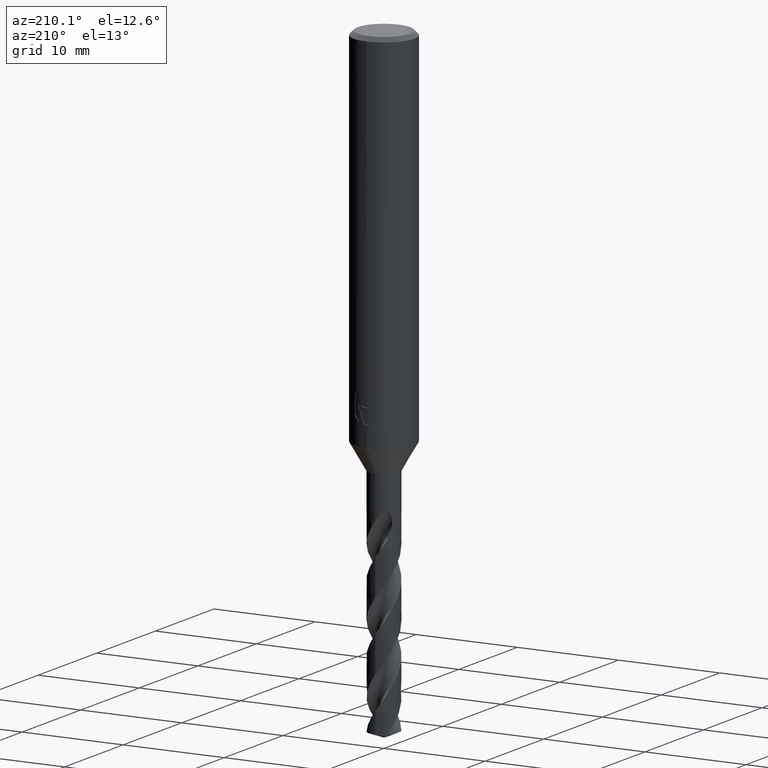
[diagram: clean part render]
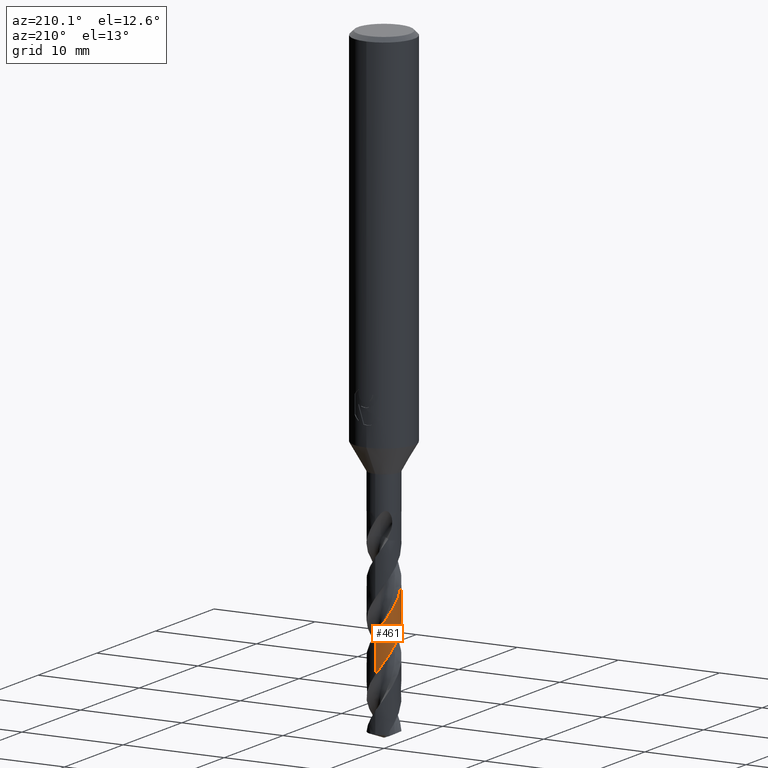
[diagram: same view with one face highlighted and labeled with its STEP entity id]
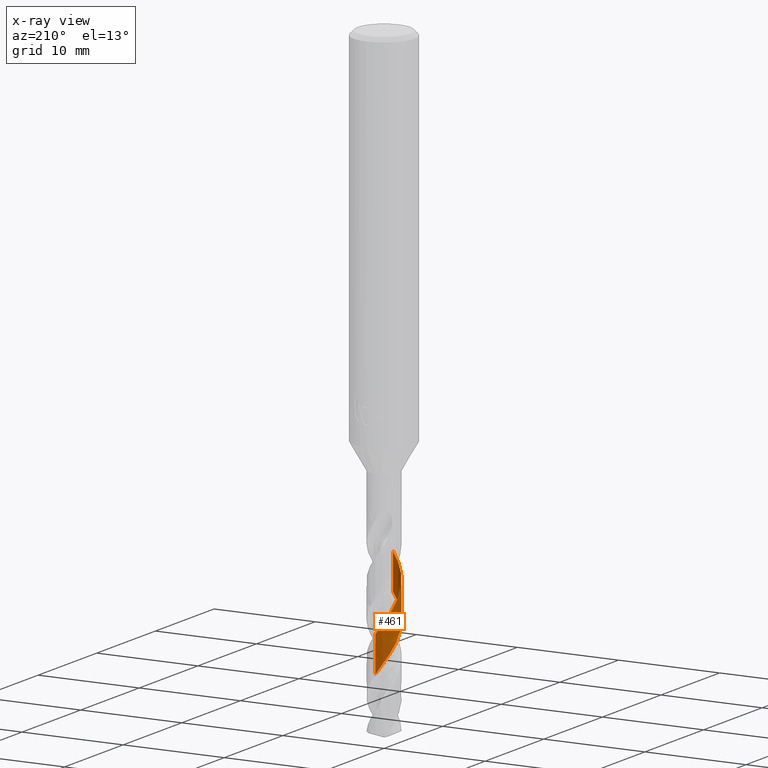
[diagram: x-ray of the same camera — body ghosted, the highlighted face saturated]
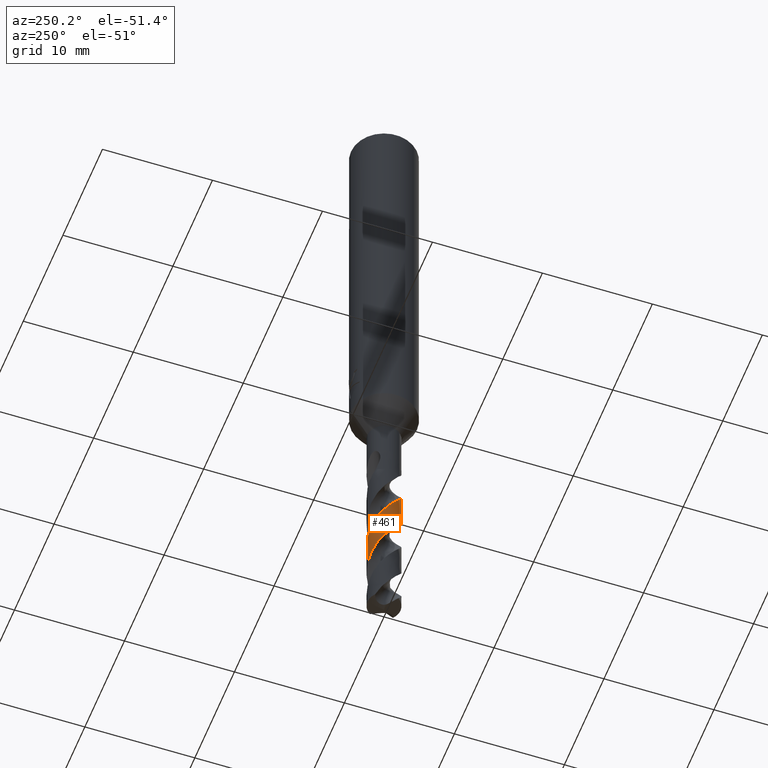
[diagram: same view with one face highlighted and labeled with its STEP entity id]
A machine part, auxiliary view. The second image highlights one B-rep face of the part: STEP entity #461.
The next image is the same camera in x-ray: the body ghosted, the highlighted face saturated — about 0% of this face is hidden behind the body in this view.
A second angle (auxiliary view) of the same face is appended — the face is thin or edge-on in the first view.
In plain terms, the highlighted conical surface has half-angle 0 deg.
Its self-contained STEP definition (entity closure, byte-faithful):
#307=VERTEX_POINT('',#816);
#405=VERTEX_POINT('',#921);
#453=EDGE_CURVE('',#307,#519,#974,.T.);
#461=ADVANCED_FACE('',(#984),#985,.T.);
#519=VERTEX_POINT('',#1049);
#595=EDGE_CURVE('',#699,#405,#1132,.T.);
#699=VERTEX_POINT('',#1246);
#723=EDGE_CURVE('',#405,#307,#1273,.T.);
#731=EDGE_CURVE('',#519,#699,#1282,.T.);
#816=CARTESIAN_POINT('',(3.57300037960697E-014,-1.49993839851076,-49.4700634271173));
#921=CARTESIAN_POINT('',(8.52531076527414E-012,1.49997300106852,-56.2016604643893));
#974=LINE('',#3062,#3063);
#984=FACE_OUTER_BOUND('',#3073,.T.);
#985=CONICAL_SURFACE('',#3074,1.49995,5.14031923979886E-006);
#1049=CARTESIAN_POINT('',(1.36365644897813E-014,-1.49992016819919,-45.9235304760453));
#1132=LINE('',#3940,#3941);
#1246=CARTESIAN_POINT('',(-4.24906613752697E-016,1.49995477359338,-52.6556793123933));
#1273=B_SPLINE_CURVE_WITH_KNOTS('',3,(#4724,#4725,#4726,#4727,#4728,#4729,#4730,#4731,#4732,#4733,#4734,#4735,#4736,#4737,#4738,#4739,#4740,#4741,#4742,#4743,#4744,#4745,#4746,#4747,#4748,#4749,#4750,#4751,#4752,#4753,#4754,#4755,#4756,#4757,#4758,#4759,#4760,#4761,#4762,#4763,#4764,#4765,#4766,#4767,#4768,#4769,#4770,#4771,#4772,#4773,#4774,#4775,#4776,#4777,#4778,#4779,#4780,#4781,#4782,#4783,#4784,#4785,#4786,#4787,#4788,#4789,#4790,#4791,#4792,#4793,#4794,#4795,#4796,#4797,#4798,#4799,#4800,#4801,#4802,#4803,#4804,#4805),.UNSPECIFIED.,.F.,.F.,(4,2,2,2,2,2,2,2,2,2,2,2,2,2,2,2,2,2,2,2,2,2,2,2,2,2,2,2,2,2,2,2,2,2,2,2,2,2,2,2,4),(0.0,1.20410374957684,1.64390835440443,2.51108941524808,3.2178345579094,3.50521719873214,4.60674178259784,4.90657849424179,6.08062694376448,6.22352512300384,7.28972884179551,7.81269005957791,8.36029403080159,9.23943846758327,9.73087689209917,10.6096483401734,11.1551090775956,12.0292702690483,12.5615361503463,13.4314288877264,13.8740677899995,14.7487859791983,15.277086154792,16.148488729927,16.6973625843419,17.2800427700184,17.9246501023505,18.6835513333995,18.9654417606361,19.1740437003243,20.0711352347055,20.1043609643397,20.2182143856412,20.3381639072584,20.4871934528864,20.6772693627819,20.8304226633557,20.9497845038939,21.0494683050454,21.2672576027525,21.4730540881757),.UNSPECIFIED.);
#1282=B_SPLINE_CURVE_WITH_KNOTS('',3,(#4896,#4897,#4898,#4899,#4900,#4901,#4902,#4903,#4904,#4905,#4906,#4907,#4908,#4909,#4910,#4911,#4912,#4913,#4914,#4915,#4916,#4917,#4918,#4919,#4920,#4921,#4922,#4923,#4924,#4925,#4926,#4927,#4928,#4929,#4930,#4931,#4932,#4933,#4934,#4935,#4936,#4937,#4938,#4939,#4940,#4941,#4942,#4943,#4944,#4945,#4946,#4947,#4948,#4949,#4950,#4951,#4952,#4953,#4954,#4955,#4956,#4957,#4958,#4959,#4960,#4961,#4962,#4963,#4964,#4965,#4966,#4967,#4968,#4969,#4970,#4971,#4972,#4973,#4974,#4975,#4976,#4977,#4978,#4979,#4980,#4981,#4982,#4983,#4984,#4985,#4986,#4987,#4988,#4989,#4990,#4991,#4992,#4993,#4994,#4995),.UNSPECIFIED.,.F.,.F.,(4,2,2,2,2,2,2,2,2,2,2,2,2,2,2,2,2,2,2,2,2,2,2,2,2,2,2,2,2,2,2,2,2,2,2,2,2,2,2,2,2,2,2,2,2,2,2,2,2,4),(0.0,0.0494770349024312,0.0874460724039117,0.101018923007453,0.118882330418932,0.263554123507688,0.312997574476619,0.354081651349707,0.423768533427,0.508155185945295,0.672210713903487,0.699854159062458,0.818234451711137,0.894586122439807,0.967333661050095,1.00500013145378,1.11817492508677,1.34546461604303,1.45576750765601,1.79219487180401,2.69820480304552,2.83786086304867,3.60133049767861,4.49823561342111,5.12886428074419,5.78024308772815,6.76779369941567,6.9704344308379,7.66156994148285,8.56895041321238,9.61872501024354,9.71121369697719,10.3869950290038,10.8402021433472,11.2723035119934,12.123545721467,12.6301595036068,13.5289355353771,14.0091781563316,14.9125320830876,15.3859589385816,16.2893795474418,16.7628541366356,17.66703717944,18.1369888293891,19.0418781370671,19.5200614635924,20.370272897072,20.8543308610321,21.3435466858628),.UNSPECIFIED.);
#3062=CARTESIAN_POINT('',(1.83690831930153E-016,-1.49995,-51.7270223243004));
#3063=VECTOR('',#5465,1.0);
#3073=EDGE_LOOP('',(#5482,#5483,#5484,#5485));
#3074=AXIS2_PLACEMENT_3D('',#5486,#5487,#5488);
#3940=CARTESIAN_POINT('',(-1.83678828153022E-016,1.49995,-51.7270223243004));
#3941=VECTOR('',#5652,1.0);
#4724=CARTESIAN_POINT('',(0.955970928159858,-1.15590639089555,-61.4540446486007));
#4725=CARTESIAN_POINT('',(1.13434228225584,-1.00838548563016,-61.1261461170947));
#4726=CARTESIAN_POINT('',(1.27580064295621,-0.821947378378693,-60.7956379731833));
#4727=CARTESIAN_POINT('',(1.40419131635194,-0.534169576059815,-60.346863537792));
#4728=CARTESIAN_POINT('',(1.43199268586925,-0.454412018523667,-60.227518388901));
#4729=CARTESIAN_POINT('',(1.49426554298271,-0.211652609583752,-59.8708478895304));
#4730=CARTESIAN_POINT('',(1.50850026079724,-0.0450886758047098,-59.6319156978935));
#4731=CARTESIAN_POINT('',(1.48423833610688,0.255649622257659,-59.2023576668012));
#4732=CARTESIAN_POINT('',(1.45511877912252,0.388309578685045,-59.0121178487377));
#4733=CARTESIAN_POINT('',(1.3899787315027,0.566502754472807,-58.740299462178));
#4734=CARTESIAN_POINT('',(1.36841439629919,0.616744911969606,-58.661303672898));
#4735=CARTESIAN_POINT('',(1.25142969405804,0.852986950628531,-58.2821850585079));
#4736=CARTESIAN_POINT('',(1.12061205276445,1.01877537814973,-57.9917587684018));
#4737=CARTESIAN_POINT('',(0.916188613824998,1.1890244412814,-57.6103260756404));
#4738=CARTESIAN_POINT('',(0.870570094599348,1.22281326259888,-57.5282710661224));
#4739=CARTESIAN_POINT('',(0.637193879510072,1.37599598018234,-57.1272917714315));
#4740=CARTESIAN_POINT('',(0.426977291954523,1.45489249931395,-56.8200269229101));
#4741=CARTESIAN_POINT('',(0.180829367100363,1.48927869826162,-56.4620009561243));
#4742=CARTESIAN_POINT('',(0.154052720072316,1.49228816614962,-56.4230691165949));
#4743=CARTESIAN_POINT('',(-0.0743280491846724,1.51170218052718,-56.0932268729777));
#4744=CARTESIAN_POINT('',(-0.277142174069716,1.48799351676023,-55.8116263011499));
#4745=CARTESIAN_POINT('',(-0.563845639604201,1.39350381212063,-55.3797445121049));
#4746=CARTESIAN_POINT('',(-0.65478077180699,1.35316753393725,-55.2362636161388));
#4747=CARTESIAN_POINT('',(-0.831820977796934,1.25252713398174,-54.9451942611514));
#4748=CARTESIAN_POINT('',(-0.91691183415787,1.19167805836288,-54.7976696642488));
#4749=CARTESIAN_POINT('',(-1.12069043529983,1.0109929696541,-54.4106088315659));
#4750=CARTESIAN_POINT('',(-1.22641283995926,0.879658124568795,-54.1698193579653));
#4751=CARTESIAN_POINT('',(-1.35401511410087,0.652130433353624,-53.7976001184705));
#4752=CARTESIAN_POINT('',(-1.39208653225525,0.566361588794893,-53.6651226575598));
#4753=CARTESIAN_POINT('',(-1.47529957111251,0.318548386872318,-53.293556623052));
#4754=CARTESIAN_POINT('',(-1.50155684167835,0.152172118580678,-53.0529204333856));
#4755=CARTESIAN_POINT('',(-1.4988396568576,-0.118811295068362,-52.6663284879638));
#4756=CARTESIAN_POINT('',(-1.48703154160454,-0.222273313194459,-52.5195890983041));
#4757=CARTESIAN_POINT('',(-1.42863044267469,-0.486441233917437,-52.134700407094));
#4758=CARTESIAN_POINT('',(-1.3659421499386,-0.641675982164567,-51.8952600023307));
#4759=CARTESIAN_POINT('',(-1.22607243800208,-0.86997716351415,-51.5138123691022));
#4760=CARTESIAN_POINT('',(-1.16452150860661,-0.950791691578031,-51.3706547582955));
#4761=CARTESIAN_POINT('',(-0.982118480007173,-1.14573772441324,-50.9905143320427));
#4762=CARTESIAN_POINT('',(-0.849910622295591,-1.24696704248305,-50.7522848165051));
#4763=CARTESIAN_POINT('',(-0.629176098824655,-1.36421101575247,-50.3964741110058));
#4764=CARTESIAN_POINT('',(-0.551526606524811,-1.39741042854755,-50.2771786510697));
#4765=CARTESIAN_POINT('',(-0.313297471662782,-1.47628989742545,-49.9201888493309));
#4766=CARTESIAN_POINT('',(-0.147825850555938,-1.50188637734202,-49.6807070954907));
#4767=CARTESIAN_POINT('',(0.119091023175143,-1.49857698713896,-49.300351555786));
#4768=CARTESIAN_POINT('',(0.219224827815979,-1.48723262337767,-49.1583034732488));
#4769=CARTESIAN_POINT('',(0.479585951343527,-1.43084166718961,-48.7790270959858));
#4770=CARTESIAN_POINT('',(0.634510159796443,-1.3691999141514,-48.5405319156185));
#4771=CARTESIAN_POINT('',(0.865808966074243,-1.22926172540779,-48.1557066870893));
#4772=CARTESIAN_POINT('',(0.949250216948421,-1.16601990955765,-48.0082586648169));
#4773=CARTESIAN_POINT('',(1.10623234062516,-1.01897297922785,-47.7015481465908));
#4774=CARTESIAN_POINT('',(1.17815053055997,-0.93482534243717,-47.5419952691203));
#4775=CARTESIAN_POINT('',(1.30874868036255,-0.742851976327342,-47.2093718929604));
#4776=CARTESIAN_POINT('',(1.36495599555225,-0.63380073429603,-47.0367958350188));
#4777=CARTESIAN_POINT('',(1.45727731044252,-0.383337760527558,-46.6577047661374));
#4778=CARTESIAN_POINT('',(1.4872458644329,-0.241819974501129,-46.4515710630476));
#4779=CARTESIAN_POINT('',(1.50018321628084,-0.0453654034514287,-46.1699340081641));
#4780=CARTESIAN_POINT('',(1.50084834609306,0.00800624017595967,-46.0938289805887));
#4781=CARTESIAN_POINT('',(1.49705248811376,0.100766305822097,-45.9611472551397));
#4782=CARTESIAN_POINT('',(1.4938815800622,0.140134929686422,-45.9046566958611));
#4783=CARTESIAN_POINT('',(1.4688497371757,0.347969167271678,-45.6055656562703));
#4784=CARTESIAN_POINT('',(1.41975337992112,0.513737534312843,-45.3573804816908));
#4785=CARTESIAN_POINT('',(1.33986944607199,0.67419493257551,-45.109578167542));
#4786=CARTESIAN_POINT('',(1.33711491264655,0.679641345165246,-45.1011750513204));
#4787=CARTESIAN_POINT('',(1.3241927513307,0.704797889082417,-45.062034801765));
#4788=CARTESIAN_POINT('',(1.31386880964708,0.723846178821415,-45.0316418241854));
#4789=CARTESIAN_POINT('',(1.29212020078229,0.762023156466298,-44.9687312863007));
#4790=CARTESIAN_POINT('',(1.28069841250905,0.781044546325215,-44.9362804916174));
#4791=CARTESIAN_POINT('',(1.2546838676596,0.822340441255523,-44.8627483989));
#4792=CARTESIAN_POINT('',(1.24407971657544,0.838058687961337,-44.8324794635782));
#4793=CARTESIAN_POINT('',(1.22046301266614,0.872212382353362,-44.7672560124904));
#4794=CARTESIAN_POINT('',(1.20662410590512,0.891277774526639,-44.7309494679348));
#4795=CARTESIAN_POINT('',(1.18032786324387,0.925711079117802,-44.665761593547));
#4796=CARTESIAN_POINT('',(1.16815326067779,0.941038691071554,-44.6368791045012));
#4797=CARTESIAN_POINT('',(1.14559934471235,0.96828821290288,-44.5857859167917));
#4798=CARTESIAN_POINT('',(1.13379575075432,0.982088074733413,-44.5598240035916));
#4799=CARTESIAN_POINT('',(1.11455584122613,1.00383201929504,-44.519875912167));
#4800=CARTESIAN_POINT('',(1.10544980589952,1.01385993447016,-44.5019600475839));
#4801=CARTESIAN_POINT('',(1.07527083322912,1.04615961687947,-44.4456688513501));
#4802=CARTESIAN_POINT('',(1.05291430617327,1.06874264497897,-44.4084115329009));
#4803=CARTESIAN_POINT('',(1.005924197376,1.11303043666649,-44.3380636850003));
#4804=CARTESIAN_POINT('',(0.981630362475983,1.13457520611436,-44.3050761811192));
#4805=CARTESIAN_POINT('',(0.955798347631239,1.15593450433059,-44.273));
#4896=CARTESIAN_POINT('',(1.04255355615397,-1.07833999378087,-44.273));
#4897=CARTESIAN_POINT('',(1.03606573374677,-1.08461260612315,-44.2868043448719));
#4898=CARTESIAN_POINT('',(1.02950796798161,-1.09083968984453,-44.3006126774366));
#4899=CARTESIAN_POINT('',(1.01777389002006,-1.10178069346257,-44.3249940987505));
#4900=CARTESIAN_POINT('',(1.0126363818001,-1.10650472873742,-44.3355618868523));
#4901=CARTESIAN_POINT('',(1.00558714879179,-1.11289577679425,-44.3498993915925));
#4902=CARTESIAN_POINT('',(1.00372463753144,-1.11457591282852,-44.3536724463915));
#4903=CARTESIAN_POINT('',(0.999394886781406,-1.11846199228523,-44.3624075678866));
#4904=CARTESIAN_POINT('',(0.996923713919423,-1.12066526225347,-44.3673662165271));
#4905=CARTESIAN_POINT('',(0.974325767580558,-1.1406789363982,-44.4124595238539));
#4906=CARTESIAN_POINT('',(0.953831149449408,-1.15788928754099,-44.4515256414355));
#4907=CARTESIAN_POINT('',(0.924783147065266,-1.18093351052848,-44.5045061164744));
#4908=CARTESIAN_POINT('',(0.917308502460519,-1.18674958358617,-44.5179444756031));
#4909=CARTESIAN_POINT('',(0.903450611594648,-1.19732150271475,-44.5425446901982));
#4910=CARTESIAN_POINT('',(0.897128527026554,-1.20206507076615,-44.5536452462669));
#4911=CARTESIAN_POINT('',(0.880237210018076,-1.21453561759751,-44.5831143917903));
#4912=CARTESIAN_POINT('',(0.869497120723639,-1.22224795164404,-44.6016292567868));
#4913=CARTESIAN_POINT('',(0.845504201020266,-1.23899970595347,-44.6425745022574));
#4914=CARTESIAN_POINT('',(0.832218601436908,-1.24796236371639,-44.6649739357423));
#4915=CARTESIAN_POINT('',(0.792692851002979,-1.27371526736438,-44.7310010760259));
#4916=CARTESIAN_POINT('',(0.766184288417961,-1.28982860081588,-44.7745059236035));
#4917=CARTESIAN_POINT('',(0.734792027090465,-1.3076128357369,-44.8256922242331));
#4918=CARTESIAN_POINT('',(0.730271173621257,-1.31014298700379,-44.8330563171311));
#4919=CARTESIAN_POINT('',(0.706277683861821,-1.32340853097054,-44.8721034168947));
#4920=CARTESIAN_POINT('',(0.686640253898629,-1.33370097242916,-44.9039182924055));
#4921=CARTESIAN_POINT('',(0.654079540397022,-1.34986247044239,-44.9561919234405));
#4922=CARTESIAN_POINT('',(0.641225718704865,-1.35601567547581,-44.9767087942112));
#4923=CARTESIAN_POINT('',(0.615959870056631,-1.36767111380505,-45.0167477193551));
#4924=CARTESIAN_POINT('',(0.603545055622138,-1.37319524067443,-45.0362878837047));
#4925=CARTESIAN_POINT('',(0.584572908129828,-1.38132957337313,-45.0659166207867));
#4926=CARTESIAN_POINT('',(0.578076452250532,-1.38406098200973,-45.0760214681261));
#4927=CARTESIAN_POINT('',(0.551962875871798,-1.3948240530558,-45.1164682533854));
#4928=CARTESIAN_POINT('',(0.53215131316028,-1.40250345618407,-45.1467820589287));
#4929=CARTESIAN_POINT('',(0.472009372522794,-1.42435314526759,-45.2380681229455));
#4930=CARTESIAN_POINT('',(0.431257125642944,-1.43721695779063,-45.2988656523209));
#4931=CARTESIAN_POINT('',(0.369997791013945,-1.45371372066612,-45.3893890181469));
#4932=CARTESIAN_POINT('',(0.349880049479248,-1.45868626781746,-45.4189810139439));
#4933=CARTESIAN_POINT('',(0.268051119282854,-1.47712339768067,-45.5388072114766));
#4934=CARTESIAN_POINT('',(0.205618090344824,-1.48709980448049,-45.6290225386075));
#4935=CARTESIAN_POINT('',(-0.0265595947846581,-1.50929889111244,-45.962329908801));
#4936=CARTESIAN_POINT('',(-0.197438250971711,-1.49657606960804,-46.2034864218243));
#4937=CARTESIAN_POINT('',(-0.388012449105176,-1.44910438564129,-46.4839144250431));
#4938=CARTESIAN_POINT('',(-0.413278501046215,-1.44210178768294,-46.5213486945422));
#4939=CARTESIAN_POINT('',(-0.575372838881501,-1.39256947753921,-46.7637222573565));
#4940=CARTESIAN_POINT('',(-0.705848682352026,-1.33122410341164,-46.9682694885784));
#4941=CARTESIAN_POINT('',(-0.966459497493057,-1.15938524564785,-47.4136898536617));
#4942=CARTESIAN_POINT('',(-1.09041812681057,-1.04359027395579,-47.6519837853405));
#4943=CARTESIAN_POINT('',(-1.26422765015181,-0.815791180026627,-48.0622929150744));
#4944=CARTESIAN_POINT('',(-1.32470434631515,-0.713459564538578,-48.2310683349299));
#4945=CARTESIAN_POINT('',(-1.42195575813203,-0.492802631035801,-48.5749666887297));
#4946=CARTESIAN_POINT('',(-1.4573854606473,-0.375200792665966,-48.7486628623305));
#4947=CARTESIAN_POINT('',(-1.50962357018012,-0.0720884113372684,-49.1889263343112));
#4948=CARTESIAN_POINT('',(-1.50701508188578,0.115059816700769,-49.4516677737757));
#4949=CARTESIAN_POINT('',(-1.46265471870817,0.334536111270476,-49.7709506937224));
#4950=CARTESIAN_POINT('',(-1.45368745000206,0.371568621137509,-49.8252566500956));
#4951=CARTESIAN_POINT('',(-1.40798426228996,0.533168915499392,-50.0652785550703));
#4952=CARTESIAN_POINT('',(-1.35653398052238,0.653097255016228,-50.2508848299866));
#4953=CARTESIAN_POINT('',(-1.20323637532554,0.911687620753018,-50.6802231580419));
#4954=CARTESIAN_POINT('',(-1.09188368443056,1.04242953427554,-50.9210632179222));
#4955=CARTESIAN_POINT('',(-0.809722909761458,1.27790963036926,-51.4472024100297));
#4956=CARTESIAN_POINT('',(-0.634785952452101,1.3732866924254,-51.7259444512248));
#4957=CARTESIAN_POINT('',(-0.429579493997462,1.43722616540465,-52.0325821514063));
#4958=CARTESIAN_POINT('',(-0.412886424969269,1.44211036250252,-52.0574041552936));
#4959=CARTESIAN_POINT('',(-0.273565093495623,1.4802583076133,-52.2637871729339));
#4960=CARTESIAN_POINT('',(-0.147182577734481,1.49811834506386,-52.4454105650918));
#4961=CARTESIAN_POINT('',(0.0651750347776001,1.50096175566104,-52.7487982706819));
#4962=CARTESIAN_POINT('',(0.150416732200135,1.49483441706823,-52.8701837025465));
#4963=CARTESIAN_POINT('',(0.315120486529334,1.46873922920105,-53.1079129072487));
#4964=CARTESIAN_POINT('',(0.394223081866836,1.44950034308655,-53.223748528281));
#4965=CARTESIAN_POINT('',(0.623114832605215,1.37374728117653,-53.5688622044626));
#4966=CARTESIAN_POINT('',(0.76615581255165,1.29946324844169,-53.7964482603202));
#4967=CARTESIAN_POINT('',(0.971455696832948,1.14685243372558,-54.1611339636469));
#4968=CARTESIAN_POINT('',(1.0423366615749,1.0828152733479,-54.2967244077732));
#4969=CARTESIAN_POINT('',(1.22063736858032,0.887958821877349,-54.6747515934673));
#4970=CARTESIAN_POINT('',(1.31296883063406,0.744781835291719,-54.9149547532758));
#4971=CARTESIAN_POINT('',(1.41502013304989,0.5057801360444,-55.2854269361871));
#4972=CARTESIAN_POINT('',(1.44290494456311,0.419621655268099,-55.4140687462774));
#4973=CARTESIAN_POINT('',(1.50040227423725,0.165961719235151,-55.7863344913656));
#4974=CARTESIAN_POINT('',(1.50959837650197,-0.0050839643336143,-56.0277817553793));
#4975=CARTESIAN_POINT('',(1.47945726926305,-0.262854277792496,-56.397745362634));
#4976=CARTESIAN_POINT('',(1.46121995604058,-0.35026366850821,-56.5246103437458));
#4977=CARTESIAN_POINT('',(1.3860646725342,-0.598005658107159,-56.8951551246021));
#4978=CARTESIAN_POINT('',(1.30941446588155,-0.751253769815928,-57.1366824751843));
#4979=CARTESIAN_POINT('',(1.1556388149613,-0.960420564847179,-57.5067735423378));
#4980=CARTESIAN_POINT('',(1.09652116878972,-1.02738133233801,-57.6336879112863));
#4981=CARTESIAN_POINT('',(0.908469343391176,-1.20563254558577,-58.004542812784));
#4982=CARTESIAN_POINT('',(0.765854910028339,-1.3009601478975,-58.2463141822991));
#4983=CARTESIAN_POINT('',(0.529095497253777,-1.40636769091543,-58.6157455274818));
#4984=CARTESIAN_POINT('',(0.445207398490434,-1.4351183798871,-58.7417420883373));
#4985=CARTESIAN_POINT('',(0.194099475803561,-1.49708654765588,-59.1119360338111));
#4986=CARTESIAN_POINT('',(0.0228345869721701,-1.50949717769371,-59.3539981753925));
#4987=CARTESIAN_POINT('',(-0.236801310836639,-1.48392542841914,-59.7259536098301));
#4988=CARTESIAN_POINT('',(-0.325471195585092,-1.46701812130213,-59.854221884222));
#4989=CARTESIAN_POINT('',(-0.565851265841746,-1.3983541849601,-60.2119578201153));
#4990=CARTESIAN_POINT('',(-0.711909359398207,-1.33000471677618,-60.4395157837928));
#4991=CARTESIAN_POINT('',(-0.920006628316629,-1.18824333708166,-60.7983616884545));
#4992=CARTESIAN_POINT('',(-0.990505974531737,-1.13012614474301,-60.9280266490972));
#4993=CARTESIAN_POINT('',(-1.12065629946751,-1.00129836432119,-61.1903306241461));
#4994=CARTESIAN_POINT('',(-1.18000793767298,-0.930626448656975,-61.3222162586166));
#4995=CARTESIAN_POINT('',(-1.23251357404472,-0.8549329153773,-61.4540446486007));
#5465=DIRECTION('',(-6.29486760170538E-022,5.14031923977623E-006,0.999999999986789));
#5482=ORIENTED_EDGE('',*,*,#595,.T.);
#5483=ORIENTED_EDGE('',*,*,#723,.T.);
#5484=ORIENTED_EDGE('',*,*,#453,.T.);
#5485=ORIENTED_EDGE('',*,*,#731,.T.);
#5486=CARTESIAN_POINT('',(0.0,0.0,-51.7270223243004));
#5487=DIRECTION('',(0.0,-0.0,-1.0));
#5488=DIRECTION('',(0.0,1.0,0.0));
#5652=DIRECTION('',(-6.29486760170538E-022,5.14031923977623E-006,-0.999999999986789));